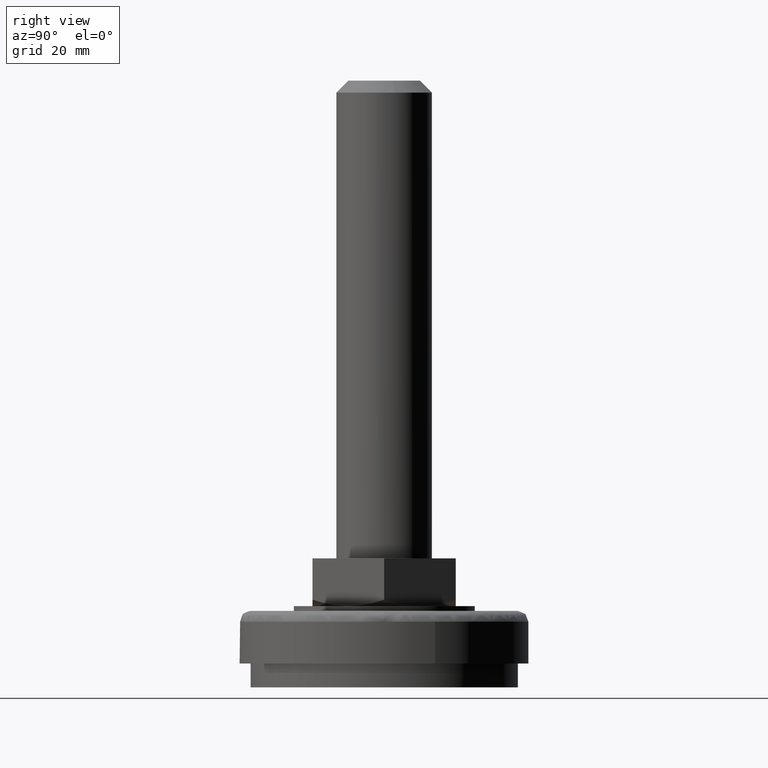
[diagram: clean part render]
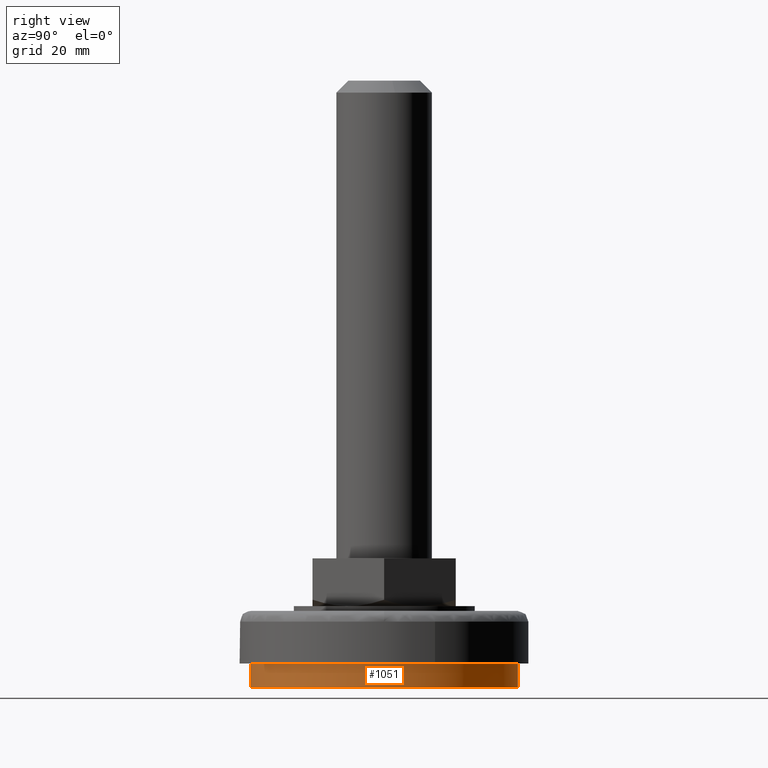
[diagram: same view with one face highlighted and labeled with its STEP entity id]
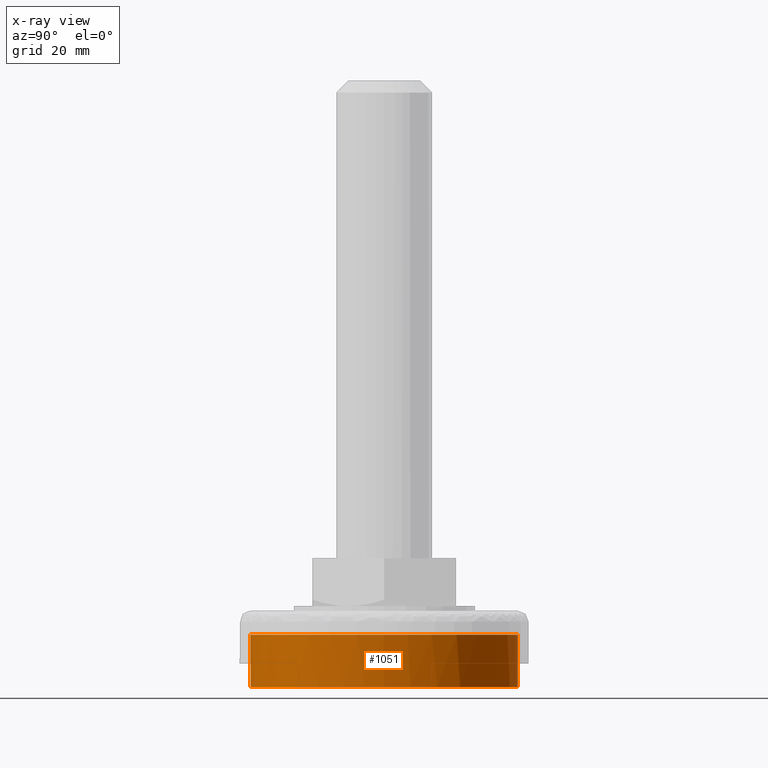
[diagram: x-ray of the same camera — body ghosted, the highlighted face saturated]
A machine part, right view. The second image highlights one B-rep face of the part: STEP entity #1051.
The next image is the same camera in x-ray: the body ghosted, the highlighted face saturated — about 0% of this face is hidden behind the body in this view.
In plain terms, the highlighted face is a freeform B-spline surface patch.
Its self-contained STEP definition (entity closure, byte-faithful):
#896=CARTESIAN_POINT('',(-19.309898797950034,20.276286849739694,-0.275000007646545));
#897=CARTESIAN_POINT('',(-28.104919807690997,11.900445312159436,-0.275000007646545));
#898=CARTESIAN_POINT('',(-27.998933845796788,-0.244342993954469,-0.275000007646545));
#899=CARTESIAN_POINT('',(-27.754590851842316,-28.243276839751257,-0.275000007646545));
#900=CARTESIAN_POINT('',(0.244342993954469,-27.998933845796788,-0.275000007646545));
#901=CARTESIAN_POINT('',(28.243276839751257,-27.754590851842316,-0.275000007646545));
#902=CARTESIAN_POINT('',(27.998933845796788,0.244342993954469,-0.275000007646545));
#903=CARTESIAN_POINT('',(27.754590851842316,28.243276839751257,-0.275000007646545));
#904=CARTESIAN_POINT('',(-0.244342993954469,27.998933845796788,-0.275000007646545));
#905=CARTESIAN_POINT('',(-19.309898797950034,20.276286849739694,11.281875313699503));
#906=CARTESIAN_POINT('',(-28.104919807690997,11.900445312159436,11.281875313699501));
#907=CARTESIAN_POINT('',(-27.998933845796788,-0.244342993954469,11.281875313699500));
#908=CARTESIAN_POINT('',(-27.754590851842316,-28.243276839751257,11.281875313699503));
#909=CARTESIAN_POINT('',(0.244342993954469,-27.998933845796788,11.281875313699500));
#910=CARTESIAN_POINT('',(28.243276839751257,-27.754590851842316,11.281875313699503));
#911=CARTESIAN_POINT('',(27.998933845796788,0.244342993954469,11.281875313699500));
#912=CARTESIAN_POINT('',(27.754590851842316,28.243276839751257,11.281875313699503));
#913=CARTESIAN_POINT('',(-0.244342993954469,27.998933845796788,11.281875313699500));
#921=(BOUNDED_SURFACE()B_SPLINE_SURFACE(2,1,((#896,#905),(#897,#906),(#898,#907),(#899,#908),(#900,#909),(#901,#910),(#902,#911),(#903,#912),(#904,#913)),.UNSPECIFIED.,.F.,.F.,.U.)B_SPLINE_SURFACE_WITH_KNOTS((3,2,2,2,3),(2,2),(0.0,24.123797872609050,70.515716858395677,116.907635844182290,163.299554829968910),(0.0,11.556875321346050),.UNSPECIFIED.)GEOMETRIC_REPRESENTATION_ITEM()RATIONAL_B_SPLINE_SURFACE(((0.853787705168325,0.853787705168325),(0.847695526217005,0.847695526217005),(1.0,1.0),(0.707106781186548,0.707106781186548),(1.0,1.0),(0.707106781186548,0.707106781186548),(1.0,1.0),(0.707106781186548,0.707106781186548),(1.0,1.0)))REPRESENTATION_ITEM('')SURFACE());
#922=CARTESIAN_POINT('',(-19.309897863247379,20.276287739893419,7.997154E-015));
#923=VERTEX_POINT('',#922);
#924=CARTESIAN_POINT('',(-28.0,0.0,0.0));
#925=VERTEX_POINT('',#924);
#926=CARTESIAN_POINT('',(-19.309897863247393,20.276287739893444,0.0));
#927=CARTESIAN_POINT('',(-28.0,12.000365301106706,0.0));
#928=CARTESIAN_POINT('',(-28.0,0.0,0.0));
#936=(BOUNDED_CURVE()B_SPLINE_CURVE(2,(#926,#927,#928),.UNSPECIFIED.,.F.,.U.)B_SPLINE_CURVE_WITH_KNOTS((3,3),(0.871317016892773,1.0),.UNSPECIFIED.)CURVE()GEOMETRIC_REPRESENTATION_ITEM()RATIONAL_B_SPLINE_CURVE((0.853680523726058,0.849238507484829,1.0))REPRESENTATION_ITEM(''));
#937=EDGE_CURVE('',#923,#925,#936,.T.);
#938=ORIENTED_EDGE('',*,*,#937,.T.);
#939=CARTESIAN_POINT('',(28.0,0.0,0.0));
#940=VERTEX_POINT('',#939);
#941=CARTESIAN_POINT('',(-28.0,0.0,0.0));
#942=CARTESIAN_POINT('',(-28.000000000000004,-28.000000000000004,0.0));
#943=CARTESIAN_POINT('',(0.0,-28.0,0.0));
#944=CARTESIAN_POINT('',(28.000000000000004,-28.000000000000004,0.0));
#945=CARTESIAN_POINT('',(28.0,0.0,0.0));
#953=(BOUNDED_CURVE()B_SPLINE_CURVE(2,(#941,#942,#943,#944,#945),.UNSPECIFIED.,.F.,.U.)B_SPLINE_CURVE_WITH_KNOTS((3,2,3),(0.0,0.250000000000000,0.500000000000000),.UNSPECIFIED.)CURVE()GEOMETRIC_REPRESENTATION_ITEM()RATIONAL_B_SPLINE_CURVE((1.0,0.707106781186547,1.0,0.707106781186547,1.0))REPRESENTATION_ITEM(''));
#954=EDGE_CURVE('',#925,#940,#953,.T.);
#955=ORIENTED_EDGE('',*,*,#954,.T.);
#956=CARTESIAN_POINT('',(-0.244321967485328,27.998934029276210,2.741973E-013));
#957=VERTEX_POINT('',#956);
#958=CARTESIAN_POINT('',(28.0,0.0,0.0));
#959=CARTESIAN_POINT('',(28.000000000000004,28.000000000000004,0.0));
#960=CARTESIAN_POINT('',(0.0,28.0,0.0));
#961=CARTESIAN_POINT('',(-0.122163309144667,28.000000000000004,0.0));
#962=CARTESIAN_POINT('',(-0.244321967485328,27.998934029276214,2.741973E-013));
#970=(BOUNDED_CURVE()B_SPLINE_CURVE(2,(#958,#959,#960,#961,#962),.UNSPECIFIED.,.F.,.U.)B_SPLINE_CURVE_WITH_KNOTS((3,2,3),(0.500000000000000,0.750000000000000,0.751539762056334),.UNSPECIFIED.)CURVE()GEOMETRIC_REPRESENTATION_ITEM()RATIONAL_B_SPLINE_CURVE((1.0,0.707106781186547,1.0,0.998196056540454,0.996414334230434))REPRESENTATION_ITEM(''));
#971=EDGE_CURVE('',#940,#957,#970,.T.);
#972=ORIENTED_EDGE('',*,*,#971,.T.);
#973=CARTESIAN_POINT('',(-0.244320504689274,27.998934042039568,11.0));
#974=VERTEX_POINT('',#973);
#975=CARTESIAN_POINT('',(-0.244321967485328,27.998934029276210,2.741973E-013));
#976=CARTESIAN_POINT('',(-0.244320504689274,27.998934042039568,11.0));
#977=QUASI_UNIFORM_CURVE('',1,(#975,#976),.UNSPECIFIED.,.F.,.U.);
#978=EDGE_CURVE('',#957,#974,#977,.T.);
#979=ORIENTED_EDGE('',*,*,#978,.T.);
#980=CARTESIAN_POINT('',(27.999999999999961,2.394707E-016,11.000000305861800));
#981=VERTEX_POINT('',#980);
#982=CARTESIAN_POINT('',(-0.244320504689274,27.998934042039568,10.999999999999996));
#983=CARTESIAN_POINT('',(-0.122162577704875,28.000000000000004,11.000000000000004));
#984=CARTESIAN_POINT('',(0.0,28.0,11.0));
#985=CARTESIAN_POINT('',(28.000000000000004,28.000000000000004,11.0));
#986=CARTESIAN_POINT('',(27.999999999999961,2.394707E-016,11.000000305861800));
#994=(BOUNDED_CURVE()B_SPLINE_CURVE(2,(#982,#983,#984,#985,#986),.UNSPECIFIED.,.F.,.U.)B_SPLINE_CURVE_WITH_KNOTS((3,2,3),(0.248460247146196,0.250000000000000,0.500000000000000),.UNSPECIFIED.)CURVE()GEOMETRIC_REPRESENTATION_ITEM()RATIONAL_B_SPLINE_CURVE((0.996414355527691,0.998196067321889,1.0,0.707106781186547,1.0))REPRESENTATION_ITEM(''));
#995=EDGE_CURVE('',#974,#981,#994,.T.);
#996=ORIENTED_EDGE('',*,*,#995,.T.);
#997=CARTESIAN_POINT('',(9.892455066497206,-26.194261447067600,11.000000305861770));
#998=VERTEX_POINT('',#997);
#999=CARTESIAN_POINT('',(27.999999999999961,2.394707E-016,11.000000305861800));
#1000=CARTESIAN_POINT('',(28.0,-19.355814217641822,10.999999999999998));
#1001=CARTESIAN_POINT('',(9.892455066497206,-26.194261447067596,11.000000305861768));
#1009=(BOUNDED_CURVE()B_SPLINE_CURVE(2,(#999,#1000,#1001),.UNSPECIFIED.,.F.,.U.)B_SPLINE_CURVE_WITH_KNOTS((3,3),(0.500000000000000,0.689999999999826),.UNSPECIFIED.)CURVE()GEOMETRIC_REPRESENTATION_ITEM()RATIONAL_B_SPLINE_CURVE((1.0,0.777401153701980,0.893152553776640))REPRESENTATION_ITEM(''));
#1010=EDGE_CURVE('',#981,#998,#1009,.T.);
#1011=ORIENTED_EDGE('',*,*,#1010,.T.);
#1012=CARTESIAN_POINT('',(-28.0,0.0,11.0));
#1013=VERTEX_POINT('',#1012);
#1014=CARTESIAN_POINT('',(9.892455066497206,-26.194261447067600,11.000000305861768));
#1015=CARTESIAN_POINT('',(5.111034535139713,-27.999999999999993,11.000000000000004));
#1016=CARTESIAN_POINT('',(0.0,-28.0,11.0));
#1017=CARTESIAN_POINT('',(-28.000000000000004,-28.000000000000004,11.0));
#1018=CARTESIAN_POINT('',(-28.0,0.0,11.0));
#1026=(BOUNDED_CURVE()B_SPLINE_CURVE(2,(#1014,#1015,#1016,#1017,#1018),.UNSPECIFIED.,.F.,.U.)B_SPLINE_CURVE_WITH_KNOTS((3,2,3),(0.689999999999826,0.750000000000000,1.0),.UNSPECIFIED.)CURVE()GEOMETRIC_REPRESENTATION_ITEM()RATIONAL_B_SPLINE_CURVE((0.893152553776641,0.929705627484568,1.0,0.707106781186547,1.0))REPRESENTATION_ITEM(''));
#1027=EDGE_CURVE('',#998,#1013,#1026,.T.);
#1028=ORIENTED_EDGE('',*,*,#1027,.T.);
#1029=CARTESIAN_POINT('',(-19.309898480244129,20.276287152303428,11.0));
#1030=VERTEX_POINT('',#1029);
#1031=CARTESIAN_POINT('',(-28.0,0.0,11.0));
#1032=CARTESIAN_POINT('',(-27.999999999999993,12.000365056499634,11.0));
#1033=CARTESIAN_POINT('',(-19.309898480244133,20.276287152303425,11.0));
#1041=(BOUNDED_CURVE()B_SPLINE_CURVE(2,(#1031,#1032,#1033),.UNSPECIFIED.,.F.,.U.)B_SPLINE_CURVE_WITH_KNOTS((3,3),(0.0,0.128682980879687),.UNSPECIFIED.)CURVE()GEOMETRIC_REPRESENTATION_ITEM()RATIONAL_B_SPLINE_CURVE((1.0,0.849238510094553,0.853680523572273))REPRESENTATION_ITEM(''));
#1042=EDGE_CURVE('',#1013,#1030,#1041,.T.);
#1043=ORIENTED_EDGE('',*,*,#1042,.T.);
#1044=CARTESIAN_POINT('',(-19.309897863247379,20.276287739893419,7.997154E-015));
#1045=CARTESIAN_POINT('',(-19.309898480244129,20.276287152303428,11.0));
#1046=QUASI_UNIFORM_CURVE('',1,(#1044,#1045),.UNSPECIFIED.,.F.,.U.);
#1047=EDGE_CURVE('',#923,#1030,#1046,.T.);
#1048=ORIENTED_EDGE('',*,*,#1047,.F.);
#1049=EDGE_LOOP('',(#938,#955,#972,#979,#996,#1011,#1028,#1043,#1048));
#1050=FACE_OUTER_BOUND('',#1049,.T.);
#1051=ADVANCED_FACE('',(#1050),#921,.T.);